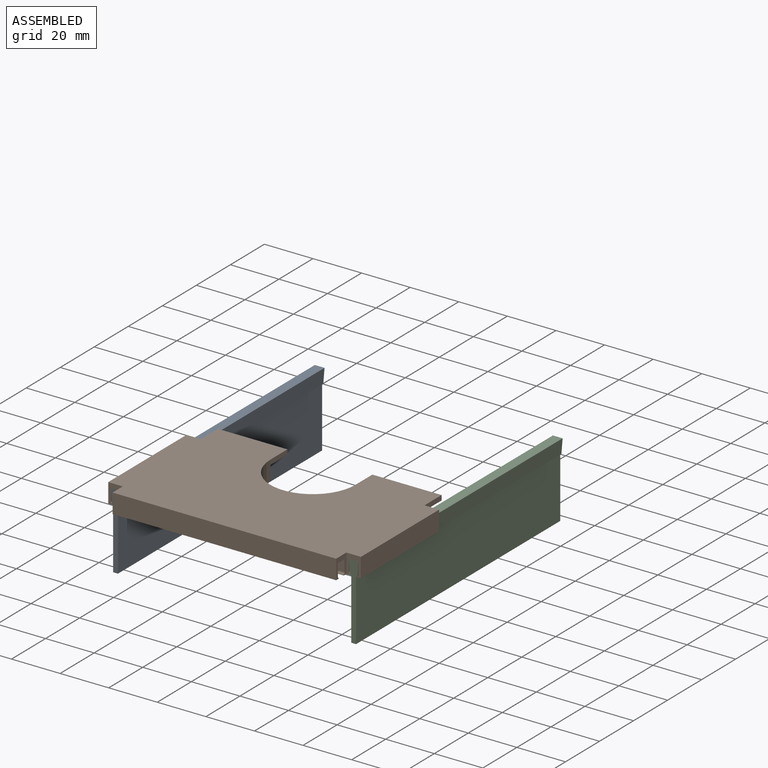
[diagram: assembled view]
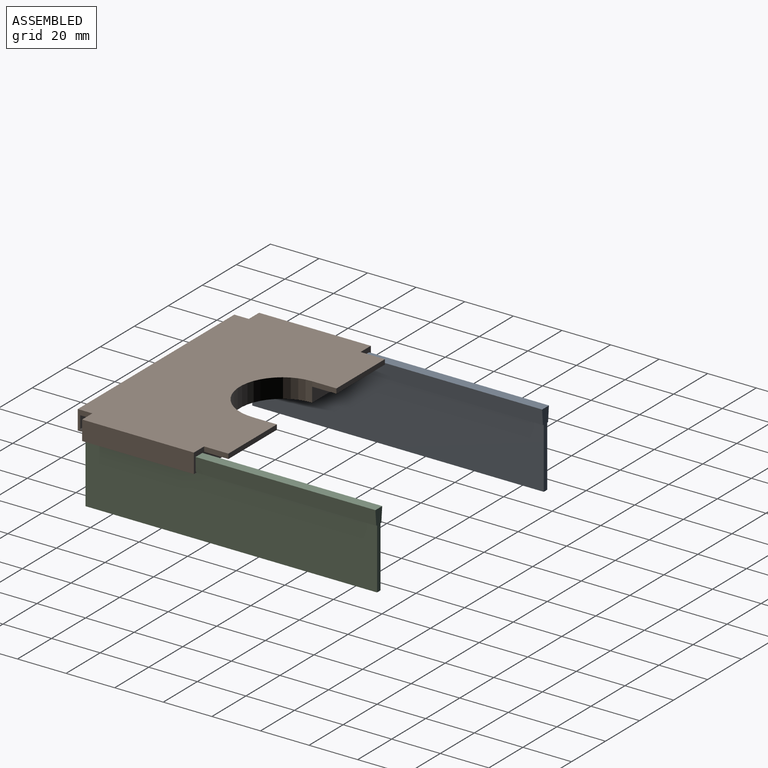
[diagram: assembled view, second angle]
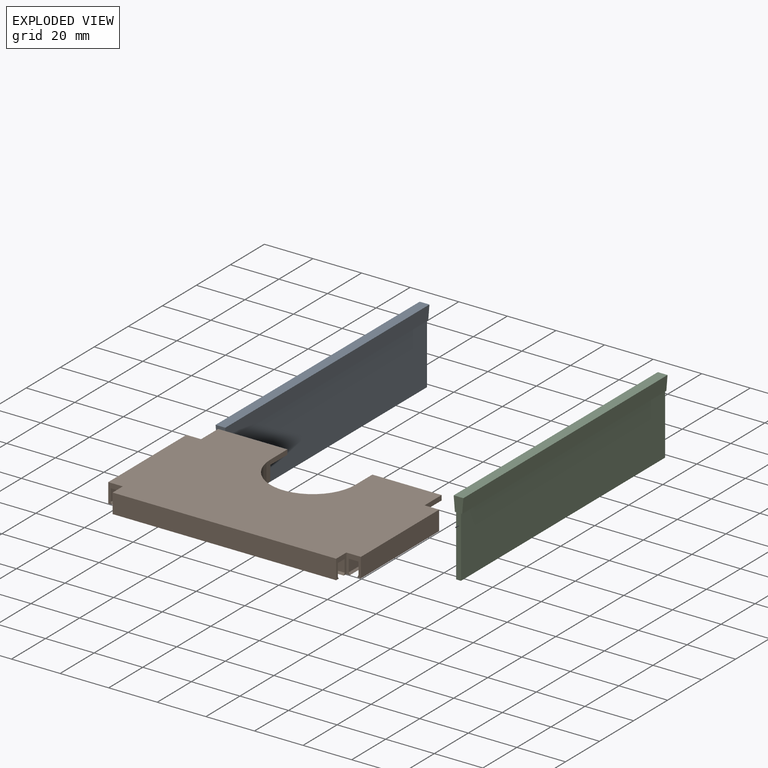
[diagram: exploded view]
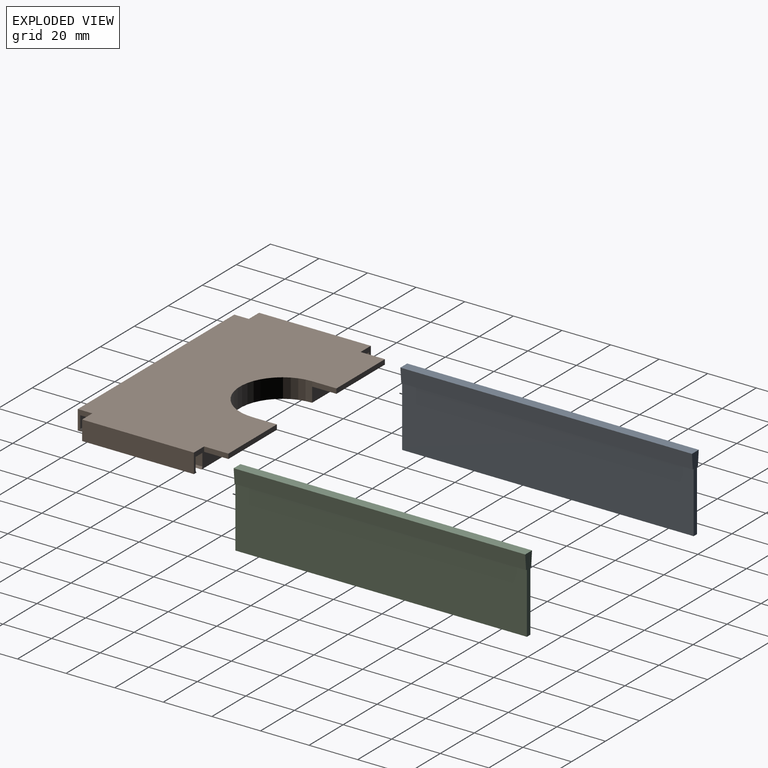
[diagram: exploded view, second angle]
ASSEMBLY  parts=3 mates=2
PART A: 10 faces, bbox 4x120x31 mm
  f0: plane 120x6mm, normal (-1,0,-0.08), area 722.5mm2, adj f1,f7,f8,f9
  f1: plane 120x0.5mm, normal (0,0,-1), area 60mm2, adj f0,f2,f8,f9
  f2: plane 120x25mm, normal (-1,0,0), area 3000mm2, adj f1,f3,f8,f9
  f3: plane 120x2mm, normal (0,0,-1), area 240mm2, adj f2,f4,f8,f9
  f4: plane 120x25mm, normal (1,0,0), area 3000mm2, adj f3,f5,f8,f9
  f5: plane 120x0.5mm, normal (0,0,-1), area 60mm2, adj f4,f6,f8,f9
  f6: plane 120x6mm, normal (1,0,-0.08), area 722.5mm2, adj f5,f7,f8,f9
  f7: plane 120x4mm, normal (0,0,1), area 480mm2, adj f0,f6,f8,f9
  f8: plane 31x4mm, normal (0,1,0), area 71mm2, adj f0,f1,f2,f3,f4,f5,f6,f7
  f9: plane 31x4mm, normal (0,-1,0), area 71mm2, adj f0,f1,f2,f3,f4,f5,f6,f7
PART B: 45 faces, bbox 104x62x8 mm
  f0: plane 95x47.5mm, normal (0,0,-1), area 2614.7mm2, adj f2,f3,f5,f7,f10,f13,f15,f23
  f1: plane 92x1.5mm, normal (0,0,-1), area 138mm2, adj f4,f13,f23,f34
  f2: plane 34.5x8mm, normal (0,1,0), area 195.4mm2, adj f0,f8,f10,f11,f12,f24,f25,f26
  f3: plane 8x6mm, normal (0,-1,0), area 24.5mm2, adj f0,f8,f11,f12,f23,f24,f25,f26
  f4: plane 92x8mm, normal (0,-1,0), area 736mm2, adj f1,f11,f13,f23
  f5: plane 34.5x8mm, normal (0,1,0), area 195.5mm2, adj f0,f6,f9,f10,f11,f14,f15,f16
  f6: plane 46x1.5mm, normal (0,0,-1), area 69mm2, adj f5,f7,f9,f16
  f7: plane 8x6mm, normal (0,-1,0), area 24.4mm2, adj f0,f6,f9,f11,f13,f14,f15,f16
  f8: plane 46x8mm, normal (-1,0,0), area 368mm2, adj f2,f3,f11,f12
  f9: plane 46x8mm, normal (1,0,0), area 368mm2, adj f5,f6,f7,f11
  f10: cylinder r=17.5mm len=35mm, axis (0,0,-1), area 439.8mm2, adj f0,f2,f5,f11,f21,f30
  f11: plane 104x62mm, normal (0,0,1), area 5424.9mm2, adj f2,f3,f4,f5,f7,f8,f9,f10
  f12: plane 46x1.5mm, normal (0,0,-1), area 69mm2, adj f2,f3,f8,f27
  f13: plane 8x6mm, normal (1,0,0), area 24.5mm2, adj f0,f1,f4,f7,f11,f33,f34,f35
  f14: plane 46x5.1mm, normal (1,0,0), area 234.6mm2, adj f5,f7,f15,f18
  f15: plane 46x0.9mm, normal (0.87,0,0.49), area 47.4mm2, adj f0,f5,f7,f14
  f16: plane 46x0.9mm, normal (-0.87,0,0.49), area 47.4mm2, adj f5,f6,f7,f17
  f17: plane 46x5.1mm, normal (-1,0,0), area 234.6mm2, adj f5,f7,f16,f18
  f18: plane 46x4mm, normal (0,0,-1), area 184mm2, adj f5,f7,f14,f17
  f19: plane 10x2mm, normal (1,0,0), area 20mm2, adj f5,f11,f20,f22
  f20: plane 28.5x10mm, normal (0,0,-1), area 285mm2, adj f5,f19,f21,f22
  f21: plane 10x2mm, normal (-1,0,0), area 20mm2, adj f10,f11,f20,f22
  f22: plane 28.5x2mm, normal (0,1,0), area 57mm2, adj f11,f19,f20,f21
  f23: plane 8x6mm, normal (-1,0,0), area 24.5mm2, adj f0,f1,f3,f4,f11,f33,f34,f35
  f24: plane 46x5.1mm, normal (-1,0,0), area 234.6mm2, adj f2,f3,f25,f28
  f25: plane 46x4mm, normal (0,0,-1), area 184mm2, adj f2,f3,f24,f26
  f26: plane 46x5.1mm, normal (1,0,0), area 234.6mm2, adj f2,f3,f25,f27
  f27: plane 46x0.9mm, normal (0.87,0,0.49), area 47.4mm2, adj f2,f3,f12,f26
  f28: plane 46x0.9mm, normal (-0.87,0,0.49), area 47.4mm2, adj f0,f2,f3,f24
  f29: plane 10x2mm, normal (-1,0,0), area 20mm2, adj f2,f11,f31,f32
  f30: plane 10x2mm, normal (1,0,0), area 20mm2, adj f10,f11,f31,f32
  f31: plane 28.5x10mm, normal (0,0,-1), area 285mm2, adj f2,f29,f30,f32
  f32: plane 28.5x2mm, normal (0,1,0), area 57mm2, adj f11,f29,f30,f31
  f33: plane 92x5.1mm, normal (0,1,0), area 469.2mm2, adj f13,f23,f34,f37
  f34: plane 92x0.9mm, normal (0,0.87,0.49), area 94.7mm2, adj f1,f13,f23,f33
  f35: plane 92x0.9mm, normal (0,-0.87,0.49), area 94.7mm2, adj f0,f13,f23,f36
  f36: plane 92x5.1mm, normal (0,-1,0), area 469.2mm2, adj f13,f23,f35,f37
  f37: plane 92x4mm, normal (0,0,-1), area 368mm2, adj f13,f23,f33,f36
  f38: plane 27.5x4mm, normal (-1,0,0), area 110mm2, adj f0,f39,f43,f44
  f39: plane 75x4mm, normal (0,1,0), area 300mm2, adj f0,f38,f40,f44
  f40: plane 27.5x4mm, normal (1,0,0), area 110mm2, adj f0,f39,f41,f44
  f41: plane 11.88x4mm, normal (0,-1,0), area 47.5mm2, adj f0,f40,f42,f44
  f42: cylinder r=27.5mm len=51.23mm, axis (0,0,-1), area 263.7mm2, adj f0,f41,f43,f44
  f43: plane 11.88x4mm, normal (0,-1,0), area 47.5mm2, adj f0,f38,f42,f44
  f44: plane 75x27.5mm, normal (0,0,-1), area 1412.2mm2, adj f38,f39,f40,f41,f42,f43
PART C: same geometry as A
PLACE A t=(-87.59,-88.02,99.8)mm
PLACE B at identity
PLACE C t=(10.41,-88.02,99.8)mm
MATE fastened C.f9 <-> B.f7  axis (0,-1,0) through (8.41,-88.02,105.8)mm
MATE fastened A.f9 <-> B.f3  axis (0,-1,0) through (-89.59,-88.02,105.8)mm
